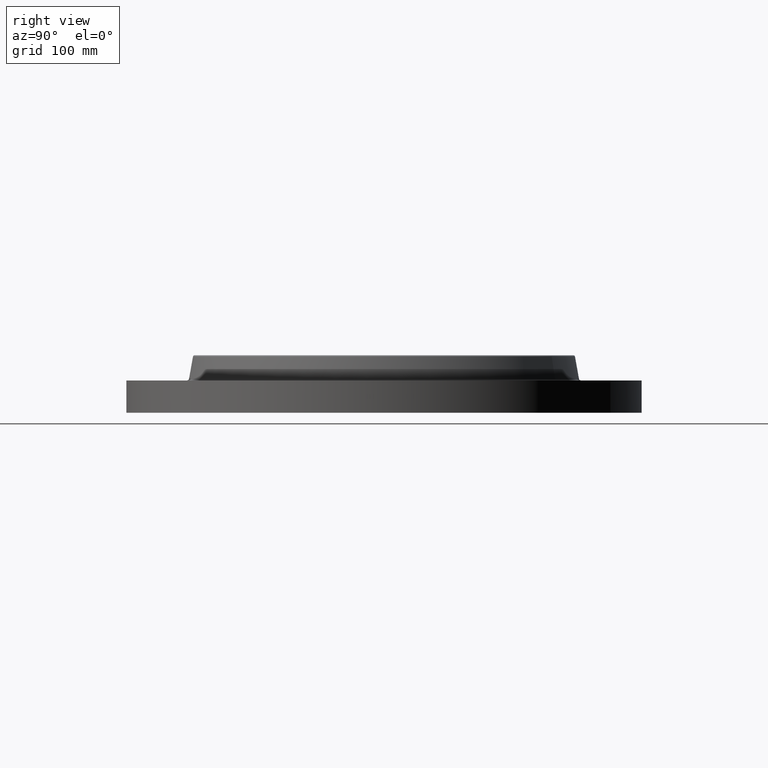
[diagram: clean part render]
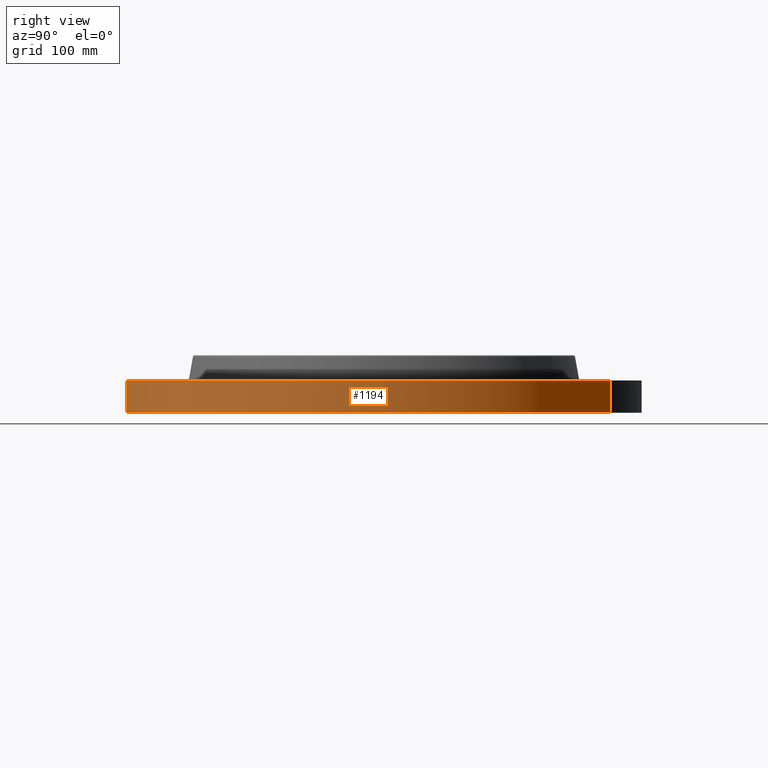
[diagram: same view with one face highlighted and labeled with its STEP entity id]
A machine part, right view. The second image highlights one B-rep face of the part: STEP entity #1194.
In plain terms, the highlighted cylindrical surface (partial cylindrical patch) has radius 241.3 mm, axis along (0, 0, -1).
Its self-contained STEP definition (entity closure, byte-faithful):
#42=AXIS2_PLACEMENT_3D('Circle Axis2P3D',#40,#41,$) ;
#1155=AXIS2_PLACEMENT_3D('Cylinder Axis2P3D',#1152,#1153,#1154) ;
#1185=AXIS2_PLACEMENT_3D('Circle Axis2P3D',#1183,#1184,$) ;
#40=CARTESIAN_POINT('Axis2P3D Location',(0.,0.,0.)) ;
#44=CARTESIAN_POINT('Vertex',(4.55454261676,8.33703433799,1.1189649382E-015)) ;
#46=CARTESIAN_POINT('Vertex',(-4.55454261676,-8.33703433799,1.1189649382E-015)) ;
#1152=CARTESIAN_POINT('Axis2P3D Location',(0.,0.,1.06)) ;
#1157=CARTESIAN_POINT('Line Origine',(-4.55454261676,-8.33703433799,0.595000000002)) ;
#1161=CARTESIAN_POINT('Vertex',(-4.55454261676,-8.33703433799,1.19)) ;
#1168=CARTESIAN_POINT('Vertex',(4.55454261676,8.33703433799,1.19)) ;
#1171=CARTESIAN_POINT('Line Origine',(4.55454261676,8.33703433799,0.595000000002)) ;
#1183=CARTESIAN_POINT('Axis2P3D Location',(0.,0.,1.19)) ;
#41=DIRECTION('Axis2P3D Direction',(0.,0.,-0.0393700787402)) ;
#1153=DIRECTION('Axis2P3D Direction',(0.,0.,-0.0393700787402)) ;
#1154=DIRECTION('Axis2P3D XDirection',(0.0188750212049,0.0345504945626,0.)) ;
#1158=DIRECTION('Vector Direction',(0.,0.,-0.0393700787402)) ;
#1172=DIRECTION('Vector Direction',(0.,0.,-0.0393700787402)) ;
#1184=DIRECTION('Axis2P3D Direction',(0.,0.,-0.0393700787402)) ;
#1159=VECTOR('Line Direction',#1158,0.0393700787402) ;
#1173=VECTOR('Line Direction',#1172,0.0393700787402) ;
#1189=ORIENTED_EDGE('',*,*,#48,.F.) ;
#1190=ORIENTED_EDGE('',*,*,#1175,.T.) ;
#1191=ORIENTED_EDGE('',*,*,#1187,.T.) ;
#1192=ORIENTED_EDGE('',*,*,#1163,.F.) ;
#1194=ADVANCED_FACE('PartBody',(#1193),#1156,.T.) ;
#43=CIRCLE('generated circle',#42,9.50000000004) ;
#1186=CIRCLE('generated circle',#1185,9.50000000004) ;
#1156=CYLINDRICAL_SURFACE('generated cylinder',#1155,9.50000000004) ;
#48=EDGE_CURVE('',#45,#47,#43,.T.) ;
#1163=EDGE_CURVE('',#47,#1162,#1160,.F.) ;
#1175=EDGE_CURVE('',#45,#1169,#1174,.F.) ;
#1187=EDGE_CURVE('',#1169,#1162,#1186,.T.) ;
#1188=EDGE_LOOP('',(#1189,#1190,#1191,#1192)) ;
#1193=FACE_OUTER_BOUND('',#1188,.T.) ;
#1160=LINE('Line',#1157,#1159) ;
#1174=LINE('Line',#1171,#1173) ;
#45=VERTEX_POINT('',#44) ;
#47=VERTEX_POINT('',#46) ;
#1162=VERTEX_POINT('',#1161) ;
#1169=VERTEX_POINT('',#1168) ;